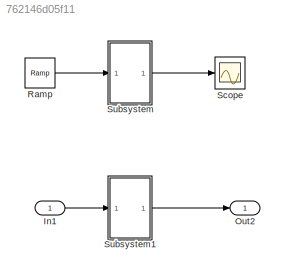
MODEL slx_762146d05f11
KIND model
CONFIG AbsTol = auto
CONFIG EnableMultiTasking = off
CONFIG FixedStep = auto
CONFIG MaxStep = auto
CONFIG MinStep = auto
CONFIG RelTol = 1e-3
CONFIG SampleTimeConstraint = Unconstrained
CONFIG SolverName = VariableStepAuto
CONFIG StartTime = 0.0
CONFIG StopTime = 100.0
BLOCK [Inport] In1
BLOCK [Outport] Out2
BLOCK [Reference] Ramp  REF=simulink/Sources/Ramp
  SourceBlock = simulink/Sources/Ramp
  SourceType = Ramp
BLOCK [Scope] Scope
  Floating = off
  NumInputPorts = 1
  ScopeSpecificationString = Simulink.scopes.TimeScopeBlockCfg('CurrentConfiguration', extmgr.ConfigurationSet(extmgr.Configuration('Core','General UI',true),extmgr.Configuration('Core','Source UI',true),extmgr.Configuration('Sources','WiredSimulink',true),extmgr.Configuration('Visuals','Time Domain',true,'SerializedDisplays',{struct('MinYLimReal','-10.00736','MaxYLimReal','90.06624','YLabelReal','','MinYLimMag','0.00000','Ma...<+1673ch>
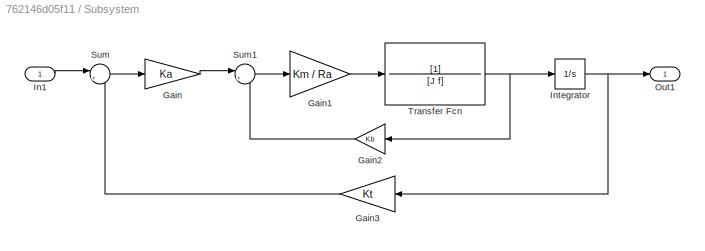
BLOCK [SubSystem] Subsystem
BLOCK [Gain] Subsystem/Gain
  Gain = Ka
BLOCK [Gain] Subsystem/Gain1
  Gain = Km / Ra
BLOCK [Gain] Subsystem/Gain2
  Gain = Kb
BLOCK [Gain] Subsystem/Gain3
  Gain = Kt
BLOCK [Inport] Subsystem/In1
BLOCK [Integrator] Subsystem/Integrator
BLOCK [Outport] Subsystem/Out1
BLOCK [Sum] Subsystem/Sum
  Inputs = |+-
BLOCK [Sum] Subsystem/Sum1
  Inputs = |+-
BLOCK [TransferFcn] Subsystem/Transfer Fcn
  Denominator = [J f]
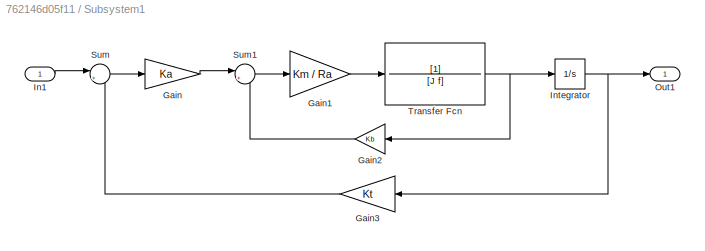
BLOCK [SubSystem] Subsystem1
BLOCK [Gain] Subsystem1/Gain
  Gain = Ka
BLOCK [Gain] Subsystem1/Gain1
  Gain = Km / Ra
BLOCK [Gain] Subsystem1/Gain2
  Gain = Kb
BLOCK [Gain] Subsystem1/Gain3
  Gain = Kt
BLOCK [Inport] Subsystem1/In1
BLOCK [Integrator] Subsystem1/Integrator
BLOCK [Outport] Subsystem1/Out1
BLOCK [Sum] Subsystem1/Sum
  Inputs = |+-
BLOCK [Sum] Subsystem1/Sum1
  Inputs = |+-
BLOCK [TransferFcn] Subsystem1/Transfer Fcn
  Denominator = [J f]
LINE In1:1 -> Subsystem1:1
LINE Ramp:1 -> Subsystem:1
LINE Subsystem/Gain1:1 -> Subsystem/Transfer Fcn:1
LINE Subsystem/Gain2:1 -> Subsystem/Sum1:2
LINE Subsystem/Gain3:1 -> Subsystem/Sum:2
LINE Subsystem/Gain:1 -> Subsystem/Sum1:1
LINE Subsystem/In1:1 -> Subsystem/Sum:1
NET Subsystem/Integrator:1 -> Subsystem/Gain3:1, Subsystem/Out1:1
LINE Subsystem/Sum1:1 -> Subsystem/Gain1:1
LINE Subsystem/Sum:1 -> Subsystem/Gain:1
NET Subsystem/Transfer Fcn:1 -> Subsystem/Gain2:1, Subsystem/Integrator:1
LINE Subsystem1/Gain1:1 -> Subsystem1/Transfer Fcn:1
LINE Subsystem1/Gain2:1 -> Subsystem1/Sum1:2
LINE Subsystem1/Gain3:1 -> Subsystem1/Sum:2
LINE Subsystem1/Gain:1 -> Subsystem1/Sum1:1
LINE Subsystem1/In1:1 -> Subsystem1/Sum:1
NET Subsystem1/Integrator:1 -> Subsystem1/Gain3:1, Subsystem1/Out1:1
LINE Subsystem1/Sum1:1 -> Subsystem1/Gain1:1
LINE Subsystem1/Sum:1 -> Subsystem1/Gain:1
NET Subsystem1/Transfer Fcn:1 -> Subsystem1/Gain2:1, Subsystem1/Integrator:1
LINE Subsystem1:1 -> Out2:1
LINE Subsystem:1 -> Scope:1
note: NET lines group one-source signal fan-out (src -> all destinations, sorted); 1:1 wires keep LINE
